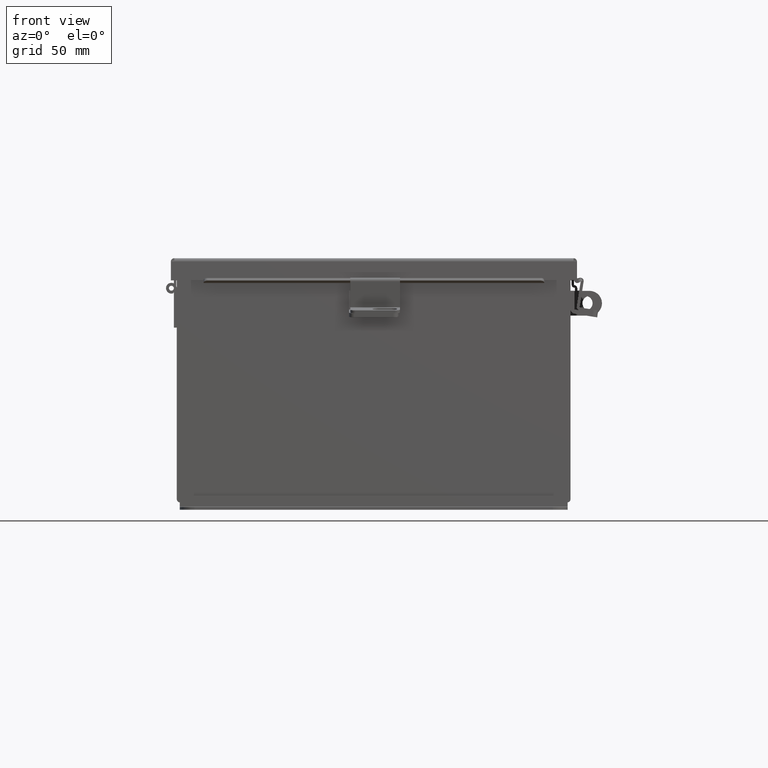
[diagram: clean part render]
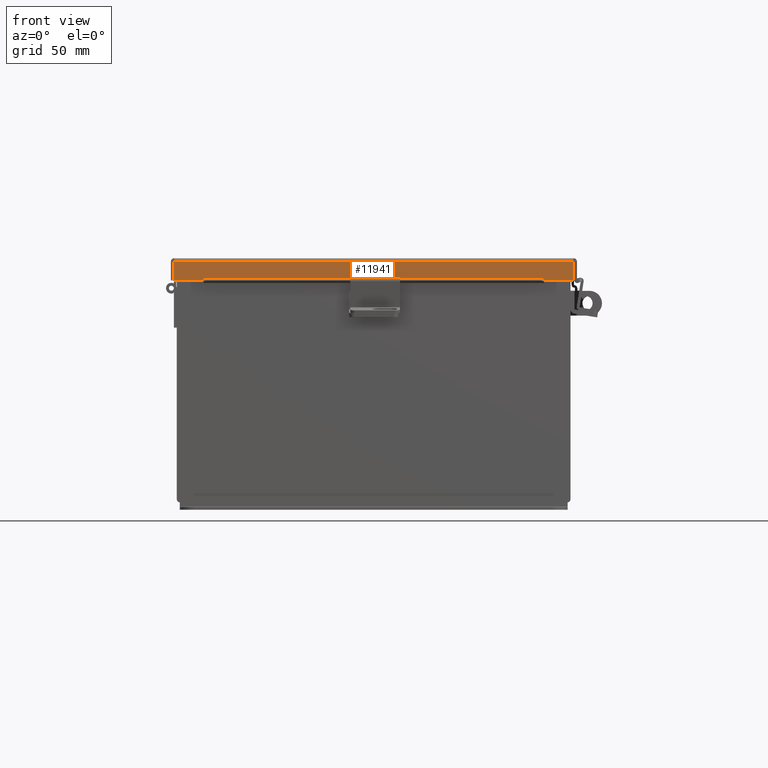
[diagram: same view with one face highlighted and labeled with its STEP entity id]
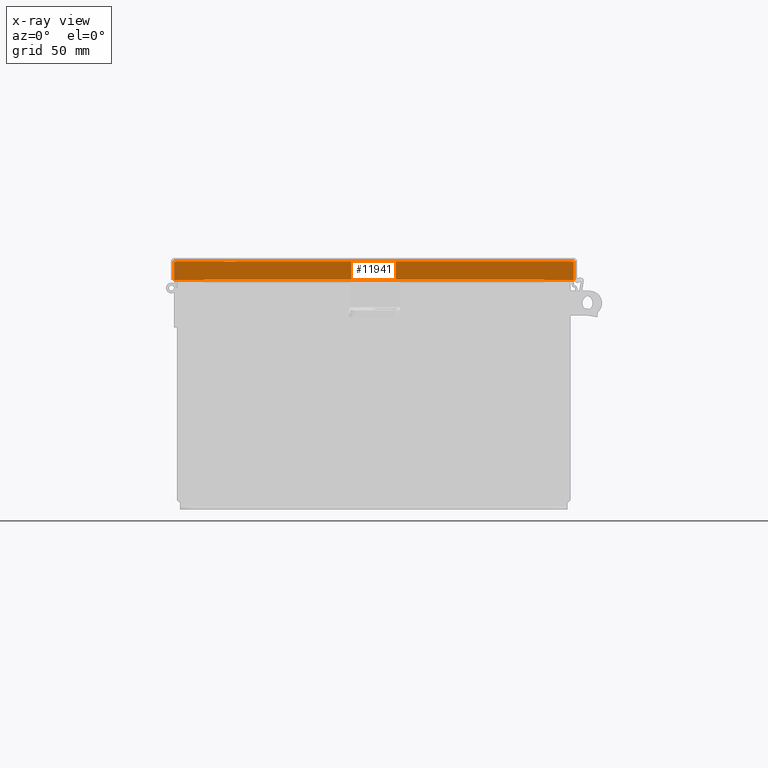
[diagram: x-ray of the same camera — body ghosted, the highlighted face saturated]
A machine part, front view. The second image highlights one B-rep face of the part: STEP entity #11941.
The next image is the same camera in x-ray: the body ghosted, the highlighted face saturated — about 0% of this face is hidden behind the body in this view.
In plain terms, the highlighted planar face has unit normal (0, 1, -0).
Its self-contained STEP definition (entity closure, byte-faithful):
#13 = CARTESIAN_POINT ( 'NONE',  ( -4.324478932188134700, -6.156250000000000900, 0.4872999999999997900 ) ) ;
#210 = DIRECTION ( 'NONE',  ( 2.970179414530265500E-032, 1.000000000000000000, 4.484872552701437000E-015 ) ) ;
#257 = DIRECTION ( 'NONE',  ( -1.000000000000000000, 2.970179414530265500E-032, 1.300837525747178200E-046 ) ) ;
#457 = LINE ( 'NONE', #947, #1780 ) ;
#695 = VERTEX_POINT ( 'NONE', #13768 ) ;
#947 = CARTESIAN_POINT ( 'NONE',  ( 5.074478932188136500, -6.156249999999999100, -2.787081030857980100E-014 ) ) ;
#1312 = DIRECTION ( 'NONE',  ( 1.000000000000000000, 0.0000000000000000000, 0.0000000000000000000 ) ) ;
#1557 = LINE ( 'NONE', #8650, #15636 ) ;
#1740 = DIRECTION ( 'NONE',  ( -0.0000000000000000000, -4.484872552701437000E-015, 1.000000000000000000 ) ) ;
#1780 = VECTOR ( 'NONE', #10492, 39.37007874015748100 ) ;
#1879 = VECTOR ( 'NONE', #1312, 39.37007874015748100 ) ;
#2202 = CARTESIAN_POINT ( 'NONE',  ( 4.324478932188138300, -6.156250000000000900, 0.4717115427318787100 ) ) ;
#2886 = LINE ( 'NONE', #2202, #6511 ) ;
#3387 = VECTOR ( 'NONE', #1740, 39.37007874015748100 ) ;
#3683 = CARTESIAN_POINT ( 'NONE',  ( 3.227223096515384500E-018, -6.156250000000000900, 0.4872999999999997900 ) ) ;
#4275 = ORIENTED_EDGE ( 'NONE', *, *, #7775, .T. ) ;
#4649 = ORIENTED_EDGE ( 'NONE', *, *, #10125, .F. ) ;
#5353 = ORIENTED_EDGE ( 'NONE', *, *, #6604, .F. ) ;
#5823 = CARTESIAN_POINT ( 'NONE',  ( -5.074478932188134700, -6.156249999999999100, -3.350199796867980800E-016 ) ) ;
#5884 = EDGE_CURVE ( 'NONE', #6184, #695, #2886, .T. ) ;
#6184 = VERTEX_POINT ( 'NONE', #14397 ) ;
#6216 = DIRECTION ( 'NONE',  ( 0.0000000000000000000, -7.009925220120777900E-014, 1.000000000000000000 ) ) ;
#6231 = VERTEX_POINT ( 'NONE', #14087 ) ;
#6316 = LINE ( 'NONE', #6715, #13106 ) ;
#6470 = VERTEX_POINT ( 'NONE', #9722 ) ;
#6511 = VECTOR ( 'NONE', #6216, 39.37007874015748100 ) ;
#6604 = EDGE_CURVE ( 'NONE', #6470, #6184, #9095, .T. ) ;
#6715 = CARTESIAN_POINT ( 'NONE',  ( -4.324478932188134700, -6.156250000000002700, 0.4872999999999986800 ) ) ;
#6828 = LINE ( 'NONE', #11222, #13195 ) ;
#6917 = CARTESIAN_POINT ( 'NONE',  ( 5.074478932188137400, -6.156250000000000900, 0.4872999999999997300 ) ) ;
#6931 = CARTESIAN_POINT ( 'NONE',  ( 5.074478932188137400, -6.156249999999999100, 0.01299999999999978100 ) ) ;
#7008 = LINE ( 'NONE', #5823, #3387 ) ;
#7088 = ORIENTED_EDGE ( 'NONE', *, *, #16936, .F. ) ;
#7254 = VERTEX_POINT ( 'NONE', #6917 ) ;
#7775 = EDGE_CURVE ( 'NONE', #14944, #6231, #8645, .T. ) ;
#7801 = VECTOR ( 'NONE', #13178, 39.37007874015748100 ) ;
#8558 = AXIS2_PLACEMENT_3D ( 'NONE', #9708, #210, #9764 ) ;
#8645 = LINE ( 'NONE', #3683, #7801 ) ;
#8650 = CARTESIAN_POINT ( 'NONE',  ( 3.227223096515384500E-018, -6.156250000000000900, 0.4872999999999997900 ) ) ;
#9095 = LINE ( 'NONE', #13517, #1879 ) ;
#9708 = CARTESIAN_POINT ( 'NONE',  ( -1.828516702070194300E-031, -6.156249999999999100, -2.787081030857980100E-014 ) ) ;
#9722 = CARTESIAN_POINT ( 'NONE',  ( -4.324478932188134700, -6.156250000000000900, 0.4717115427318787100 ) ) ;
#9764 = DIRECTION ( 'NONE',  ( 0.0000000000000000000, -4.484872552701437000E-015, 1.000000000000000000 ) ) ;
#10125 = EDGE_CURVE ( 'NONE', #14944, #6470, #6316, .T. ) ;
#10492 = DIRECTION ( 'NONE',  ( 0.0000000000000000000, -4.484872552701437000E-015, 1.000000000000000000 ) ) ;
#11153 = CARTESIAN_POINT ( 'NONE',  ( -5.074478932188133800, -6.156249999999999100, 0.01299999999999977400 ) ) ;
#11222 = CARTESIAN_POINT ( 'NONE',  ( -5.156249999999999100, -6.156249999999999100, 0.01299999999999978100 ) ) ;
#11440 = EDGE_CURVE ( 'NONE', #7254, #695, #1557, .T. ) ;
#11774 = ORIENTED_EDGE ( 'NONE', *, *, #15728, .F. ) ;
#11941 = ADVANCED_FACE ( 'NONE', ( #11999 ), #12468, .F. ) ;
#11999 = FACE_OUTER_BOUND ( 'NONE', #13383, .T. ) ;
#12440 = VERTEX_POINT ( 'NONE', #11153 ) ;
#12468 = PLANE ( 'NONE',  #8558 ) ;
#13106 = VECTOR ( 'NONE', #17636, 39.37007874015748100 ) ;
#13178 = DIRECTION ( 'NONE',  ( -1.000000000000000000, -5.473822126268817900E-048, 6.622661802822457500E-018 ) ) ;
#13195 = VECTOR ( 'NONE', #257, 39.37007874015748100 ) ;
#13383 = EDGE_LOOP ( 'NONE', ( #4649, #4275, #7088, #11774, #16018, #15566, #16216, #5353 ) ) ;
#13517 = CARTESIAN_POINT ( 'NONE',  ( -4.324478932188134700, -6.156250000000000900, 0.4717115427318787100 ) ) ;
#13650 = EDGE_CURVE ( 'NONE', #14313, #7254, #457, .T. ) ;
#13768 = CARTESIAN_POINT ( 'NONE',  ( 4.324478932188137400, -6.156250000000000900, 0.4872999999999997900 ) ) ;
#14087 = CARTESIAN_POINT ( 'NONE',  ( -5.074478932188134700, -6.156250000000000900, 0.4872999999999997900 ) ) ;
#14313 = VERTEX_POINT ( 'NONE', #6931 ) ;
#14397 = CARTESIAN_POINT ( 'NONE',  ( 4.324478932188138300, -6.156250000000000900, 0.4717115427318787100 ) ) ;
#14944 = VERTEX_POINT ( 'NONE', #13 ) ;
#15566 = ORIENTED_EDGE ( 'NONE', *, *, #11440, .T. ) ;
#15636 = VECTOR ( 'NONE', #16840, 39.37007874015748100 ) ;
#15728 = EDGE_CURVE ( 'NONE', #14313, #12440, #6828, .T. ) ;
#16018 = ORIENTED_EDGE ( 'NONE', *, *, #13650, .T. ) ;
#16216 = ORIENTED_EDGE ( 'NONE', *, *, #5884, .F. ) ;
#16840 = DIRECTION ( 'NONE',  ( -1.000000000000000000, -5.473822126268817900E-048, 6.622661802822457500E-018 ) ) ;
#16936 = EDGE_CURVE ( 'NONE', #12440, #6231, #7008, .T. ) ;
#17636 = DIRECTION ( 'NONE',  ( 0.0000000000000000000, 7.009925220120870000E-014, -1.000000000000000000 ) ) ;